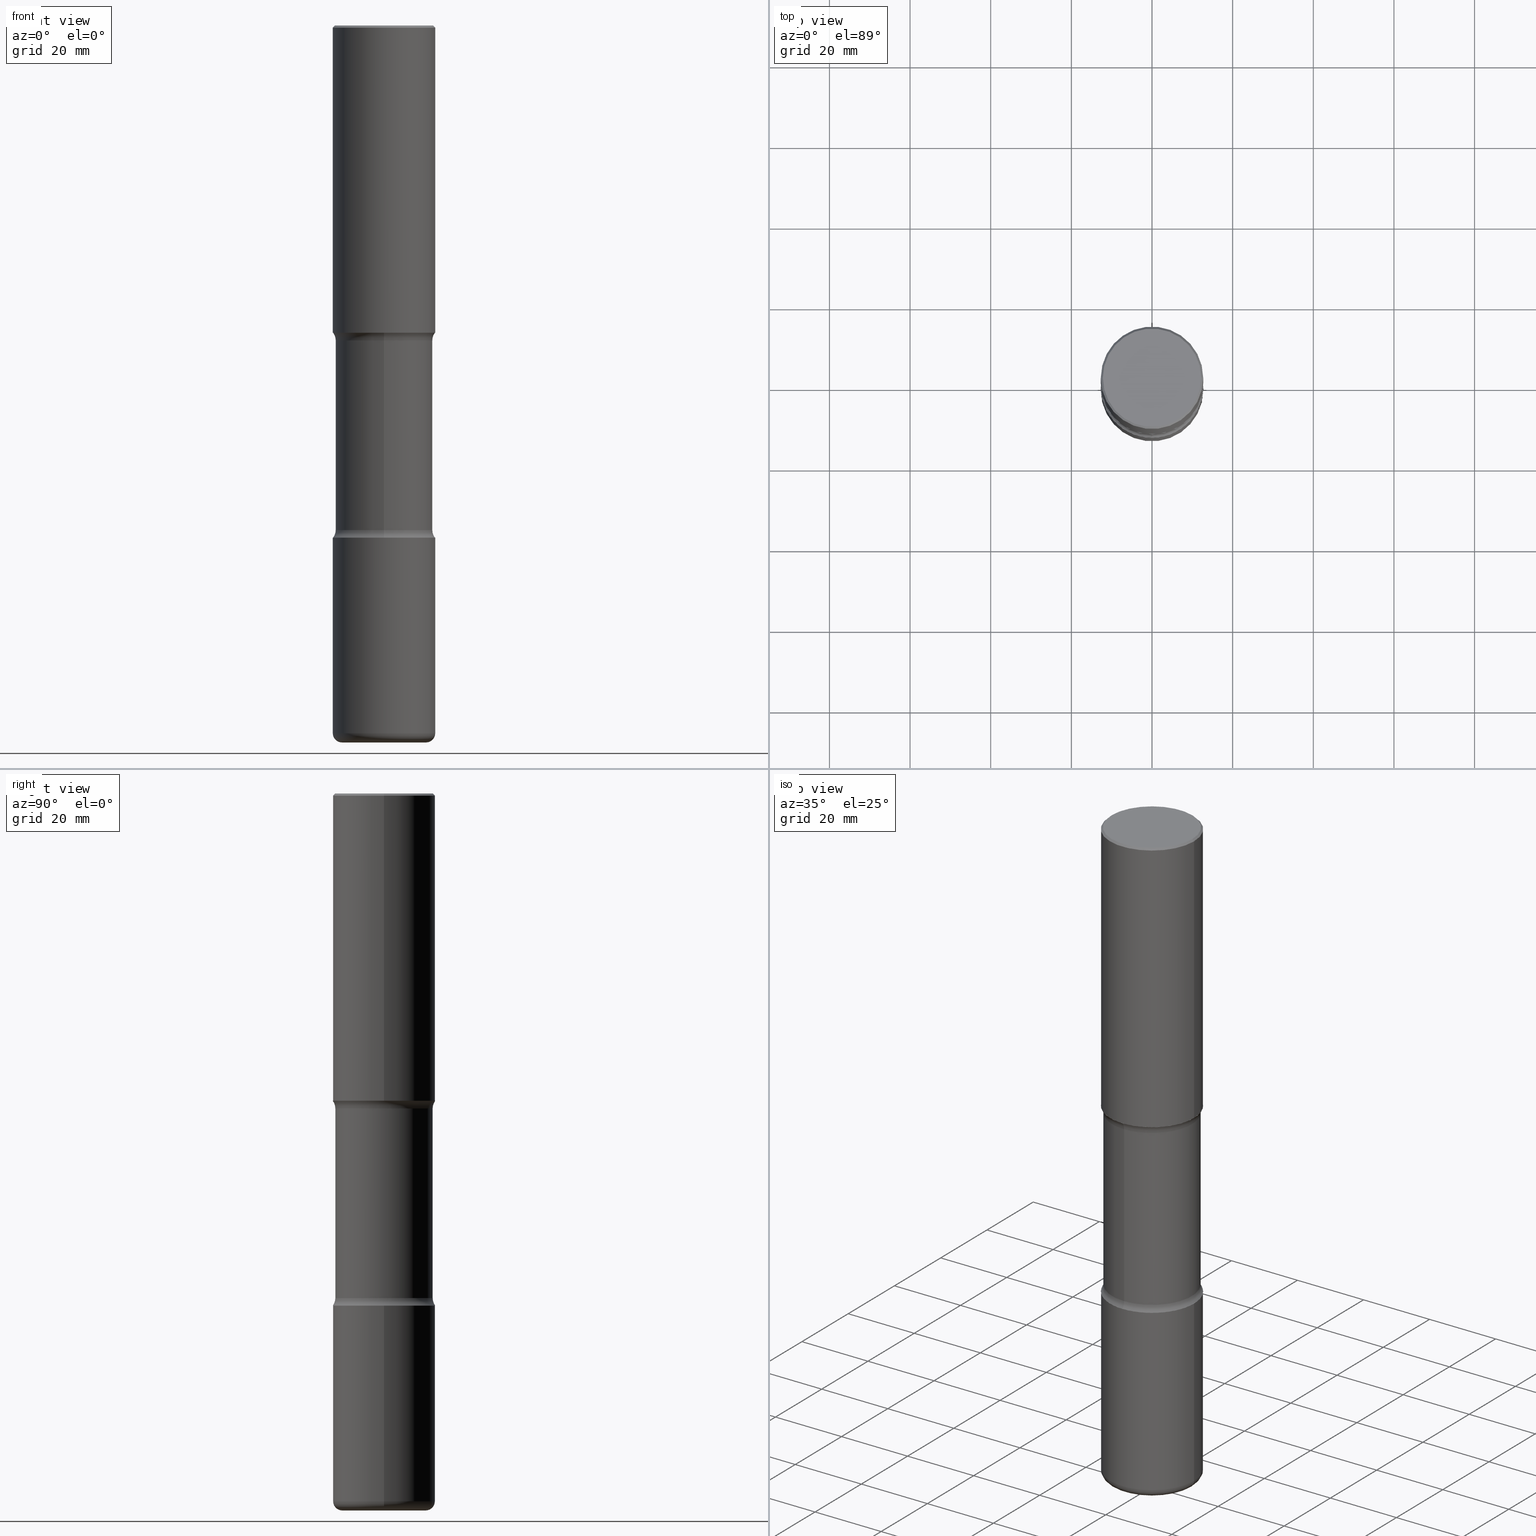
[diagram: canonical four-view strip — front | top / right | iso, engineering-drawing reading convention]
A machine part, canonical four-view strip (front | top / right | iso — engineering-drawing reading convention). The complete STEP part file that produces these views, byte-faithful:
ISO-10303-21;
HEADER;
FILE_DESCRIPTION (( 'STEP AP203' ),
    '1' );
FILE_NAME ('37970.STEP',
    '2024-03-02T01:56:38',
    ( '' ),
    ( '' ),
    'SwSTEP 2.0',
    'SolidWorks 2023',
    '' );
FILE_SCHEMA (( 'CONFIG_CONTROL_DESIGN' ));
ENDSEC;

DATA;
#1 = COORDINATED_UNIVERSAL_TIME_OFFSET ( 5, 0, .BEHIND. ) ;
#2 = FACE_OUTER_BOUND ( 'NONE', #448, .T. ) ;
#3 = CONICAL_SURFACE ( 'NONE', #101, 0.4999999999999999445, 0.7853981633974477239 ) ;
#4 = EDGE_CURVE ( 'NONE', #35, #541, #553, .T. ) ;
#5 = CARTESIAN_POINT ( 'NONE',  ( 1.689818945073929451E-28, -2.412613605140613858E-14, -6.910000000000000142 ) ) ;
#6 = CARTESIAN_POINT ( 'NONE',  ( -0.5000000000000001110, 3.552713678800501718E-15, -2.459467545127453732E-29 ) ) ;
#7 = EDGE_LOOP ( 'NONE', ( #529, #162, #547, #364 ) ) ;
#8 = VERTEX_POINT ( 'NONE', #280 ) ;
#9 = DIRECTION ( 'NONE',  ( -2.445468806185136597E-29, 3.491481338843145583E-15, 1.000000000000000000 ) ) ;
#10 = ORIENTED_EDGE ( 'NONE', *, *, #126, .T. ) ;
#11 = CIRCLE ( 'NONE', #255, 0.4999999999999999445 ) ;
#12 = TOROIDAL_SURFACE ( 'NONE', #461, 0.5999999999999999778, 0.1250000000000001110 ) ;
#13 = DIRECTION ( 'NONE',  ( 1.000000000000000000, -6.982962677686269077E-15, 4.883557194083113462E-29 ) ) ;
#14 = VERTEX_POINT ( 'NONE', #486 ) ;
#15 = APPROVAL ( #120, 'UNSPECIFIED' ) ;
#16 = CARTESIAN_POINT ( 'NONE',  ( 1.204017111178237438E-28, -1.720093407839433761E-14, -4.924999999999998046 ) ) ;
#17 = ORIENTED_EDGE ( 'NONE', *, *, #346, .T. ) ;
#18 = UNCERTAINTY_MEASURE_WITH_UNIT (LENGTH_MEASURE( 1.000000000000000082E-05 ), #279, 'distance_accuracy_value', 'NONE');
#19 = DIRECTION ( 'NONE',  ( 6.982962677686265133E-15, 1.000000000000000000, -3.278217592397113101E-15 ) ) ;
#20 = EDGE_CURVE ( 'NONE', #73, #52, #392, .T. ) ;
#21 = ORIENTED_EDGE ( 'NONE', *, *, #179, .F. ) ;
#22 = DATE_TIME_ROLE ( 'creation_date' ) ;
#23 = TOROIDAL_SURFACE ( 'NONE', #89, 0.6000000000000001998, 0.1250000000000002498 ) ;
#24 = AXIS2_PLACEMENT_3D ( 'NONE', #172, #253, #434 ) ;
#25 = CARTESIAN_POINT ( 'NONE',  ( 1.222734403092568074E-28, -1.745740669421572673E-14, -4.999999999999999112 ) ) ;
#26 = CC_DESIGN_PERSON_AND_ORGANIZATION_ASSIGNMENT ( #342, #351, ( #525 ) ) ;
#27 = VERTEX_POINT ( 'NONE', #263 ) ;
#28 = PERSON_AND_ORGANIZATION_ROLE ( 'creator' ) ;
#29 = APPROVAL_ROLE ( '' ) ;
#30 = VERTEX_POINT ( 'NONE', #95 ) ;
#31 = AXIS2_PLACEMENT_3D ( 'NONE', #43, #213, #478 ) ;
#32 = DIRECTION ( 'NONE',  ( -2.495638921910707734E-29, 3.419634877618474112E-15, 1.000000000000000000 ) ) ;
#33 = FACE_OUTER_BOUND ( 'NONE', #55, .T. ) ;
#34 = APPROVAL_PERSON_ORGANIZATION ( #156, #337, #29 ) ;
#35 = VERTEX_POINT ( 'NONE', #270 ) ;
#36 = PERSON_AND_ORGANIZATION_ROLE ( 'design_owner' ) ;
#37 = ADVANCED_FACE ( 'NONE', ( #444 ), #54, .T. ) ;
#38 = FACE_OUTER_BOUND ( 'NONE', #531, .T. ) ;
#39 = VECTOR ( 'NONE', #510, 39.37007874015748143 ) ;
#40 = AXIS2_PLACEMENT_3D ( 'NONE', #288, #534, #319 ) ;
#41 = DATE_AND_TIME ( #176, #407 ) ;
#42 = FACE_OUTER_BOUND ( 'NONE', #287, .T. ) ;
#43 = CARTESIAN_POINT ( 'NONE',  ( 7.236066187104263592E-29, -1.061813693897877772E-14, -2.999999999999999112 ) ) ;
#44 = EDGE_CURVE ( 'NONE', #530, #299, #182, .T. ) ;
#45 = DIRECTION ( 'NONE',  ( -1.000000000000000000, 6.982962677686265922E-15, -4.876176775795935793E-29 ) ) ;
#46 = DIRECTION ( 'NONE',  ( -2.445468806185136597E-29, 3.491481338843145583E-15, 1.000000000000000000 ) ) ;
#47 = CIRCLE ( 'NONE', #60, 0.4799999999999998157 ) ;
#48 = DIRECTION ( 'NONE',  ( 1.000000000000000000, -6.982962677686270655E-15, 0.000000000000000000 ) ) ;
#49 = CARTESIAN_POINT ( 'NONE',  ( 7.424434616114947917E-29, -1.087289751662588659E-14, -3.075000000000000178 ) ) ;
#50 = ORIENTED_EDGE ( 'NONE', *, *, #20, .T. ) ;
#51 = DIRECTION ( 'NONE',  ( 2.438088387897960049E-29, -3.491481338843145188E-15, -1.000000000000000000 ) ) ;
#52 = VERTEX_POINT ( 'NONE', #513 ) ;
#53 = CARTESIAN_POINT ( 'NONE',  ( 0.000000000000000000, 0.000000000000000000, 0.000000000000000000 ) ) ;
#54 = CYLINDRICAL_SURFACE ( 'NONE', #484, 0.5000000000000001110 ) ;
#55 = EDGE_LOOP ( 'NONE', ( #368, #294, #148, #502 ) ) ;
#56 = ORIENTED_EDGE ( 'NONE', *, *, #411, .T. ) ;
#57 = CARTESIAN_POINT ( 'NONE',  ( 1.689818945073929451E-28, -2.412613605140613858E-14, -6.910000000000000142 ) ) ;
#58 = EDGE_LOOP ( 'NONE', ( #56, #316, #537, #443 ) ) ;
#59 = AXIS2_PLACEMENT_3D ( 'NONE', #535, #146, #313 ) ;
#60 = AXIS2_PLACEMENT_3D ( 'NONE', #388, #118, #520 ) ;
#61 = CC_DESIGN_SECURITY_CLASSIFICATION ( #525, ( #201 ) ) ;
#62 = DIRECTION ( 'NONE',  ( 2.445468806185136597E-29, -3.491481338843145583E-15, -1.000000000000000000 ) ) ;
#63 = ORIENTED_EDGE ( 'NONE', *, *, #44, .T. ) ;
#64 = EDGE_CURVE ( 'NONE', #160, #8, #439, .T. ) ;
#65 = ORIENTED_EDGE ( 'NONE', *, *, #4, .F. ) ;
#66 = EDGE_CURVE ( 'NONE', #141, #314, #323, .T. ) ;
#67 = DIRECTION ( 'NONE',  ( 2.495638921910708014E-29, -3.419634877618474112E-15, -1.000000000000000000 ) ) ;
#68 = AXIS2_PLACEMENT_3D ( 'NONE', #284, #332, #80 ) ;
#69 = DIRECTION ( 'NONE',  ( -2.445468806185136597E-29, 3.491481338843145583E-15, 1.000000000000000000 ) ) ;
#70 = DIRECTION ( 'NONE',  ( -1.000000000000000000, 6.982962677686265922E-15, -4.876176775795935793E-29 ) ) ;
#71 = CYLINDRICAL_SURFACE ( 'NONE', #82, 0.4750000000000000333 ) ;
#72 = EDGE_CURVE ( 'NONE', #52, #73, #266, .T. ) ;
#73 = VERTEX_POINT ( 'NONE', #494 ) ;
#74 = ADVANCED_FACE ( 'NONE', ( #489 ), #23, .F. ) ;
#75 = CARTESIAN_POINT ( 'NONE',  ( 4.189777606611833390E-15, 0.5999999999999890976, -3.075000000000002398 ) ) ;
#76 = DIRECTION ( 'NONE',  ( 6.982962677686265133E-15, 1.000000000000000000, -3.419634877618474112E-15 ) ) ;
#77 = AXIS2_PLACEMENT_3D ( 'NONE', #378, #425, #19 ) ;
#78 = AXIS2_PLACEMENT_3D ( 'NONE', #142, #69, #296 ) ;
#79 = ADVANCED_FACE ( 'NONE', ( #324 ), #460, .T. ) ;
#80 = DIRECTION ( 'NONE',  ( 6.982962677686265133E-15, 1.000000000000000000, -3.450755360418015555E-15 ) ) ;
#81 = DATE_AND_TIME ( #476, #282 ) ;
#82 = AXIS2_PLACEMENT_3D ( 'NONE', #345, #423, #205 ) ;
#83 = APPROVAL_PERSON_ORGANIZATION ( #353, #15, #356 ) ;
#84 = CARTESIAN_POINT ( 'NONE',  ( 4.189777606611881511E-15, 0.5999999999999829914, -4.925000000000000711 ) ) ;
#85 = DIRECTION ( 'NONE',  ( -2.445468806185136597E-29, 3.491481338843145583E-15, 1.000000000000000000 ) ) ;
#86 = ADVANCED_FACE ( 'NONE', ( #549 ), #542, .T. ) ;
#87 = LINE ( 'NONE', #437, #417 ) ;
#88 = DIRECTION ( 'NONE',  ( 6.982962677686265133E-15, 1.000000000000000000, -3.419634877618474112E-15 ) ) ;
#89 = AXIS2_PLACEMENT_3D ( 'NONE', #380, #544, #76 ) ;
#90 = ORIENTED_EDGE ( 'NONE', *, *, #432, .T. ) ;
#91 = CIRCLE ( 'NONE', #215, 0.09000000000000020484 ) ;
#92 = MANIFOLD_SOLID_BREP ( 'Body-Move/Copy2[1]', #224 ) ;
#93 = CARTESIAN_POINT ( 'NONE',  ( -4.116298798662844153E-15, -0.6000000000000108580, -3.074999999999998401 ) ) ;
#94 = APPLICATION_CONTEXT ( 'configuration controlled 3d designs of mechanical parts and assemblies' ) ;
#95 = CARTESIAN_POINT ( 'NONE',  ( -3.344492773913550718E-15, -0.4750000000000109690, -3.074999999999998401 ) ) ;
#96 = PLANE ( 'NONE',  #168 ) ;
#97 = ORIENTED_EDGE ( 'NONE', *, *, #555, .F. ) ;
#98 = CARTESIAN_POINT ( 'NONE',  ( 7.336406418555407548E-29, -1.047444401652943320E-14, -2.999999999999999112 ) ) ;
#99 = AXIS2_PLACEMENT_3D ( 'NONE', #84, #259, #481 ) ;
#100 = EDGE_CURVE ( 'NONE', #499, #14, #11, .T. ) ;
#101 = AXIS2_PLACEMENT_3D ( 'NONE', #229, #62, #412 ) ;
#102 = DIRECTION ( 'NONE',  ( 6.982962677686265133E-15, 1.000000000000000000, -3.450755360418015555E-15 ) ) ;
#103 = ORIENTED_EDGE ( 'NONE', *, *, #383, .T. ) ;
#104 = EDGE_CURVE ( 'NONE', #8, #160, #416, .T. ) ;
#105 = DIRECTION ( 'NONE',  ( -2.445468806185136877E-29, 3.491481338843145188E-15, 1.000000000000000000 ) ) ;
#106 = CARTESIAN_POINT ( 'NONE',  ( 0.5000000000000002220, -1.396592535537256813E-14, -2.999999999999999112 ) ) ;
#107 = EDGE_LOOP ( 'NONE', ( #424, #419 ) ) ;
#108 = CARTESIAN_POINT ( 'NONE',  ( 4.890937612370306439E-31, -6.982962677686338448E-17, -0.02000000000000013572 ) ) ;
#109 = DIRECTION ( 'NONE',  ( 6.982962677686265133E-15, 1.000000000000000000, -3.419634877618474112E-15 ) ) ;
#110 = DIRECTION ( 'NONE',  ( 1.000000000000000000, -6.982962677686266711E-15, 4.876431871984415397E-29 ) ) ;
#111 = LOCAL_TIME ( 20, 56, 38.00000000000000000, #331 ) ;
#112 = ORIENTED_EDGE ( 'NONE', *, *, #555, .T. ) ;
#113 = CC_DESIGN_PERSON_AND_ORGANIZATION_ASSIGNMENT ( #206, #390, ( #201 ) ) ;
#114 = CYLINDRICAL_SURFACE ( 'NONE', #308, 0.5000000000000001110 ) ;
#115 = ADVANCED_FACE ( 'NONE', ( #438 ), #350, .T. ) ;
#116 = AXIS2_PLACEMENT_3D ( 'NONE', #57, #151, #395 ) ;
#117 = AXIS2_PLACEMENT_3D ( 'NONE', #108, #491, #538 ) ;
#118 = DIRECTION ( 'NONE',  ( -2.445468806185136597E-29, 3.491481338843145583E-15, 1.000000000000000000 ) ) ;
#119 = CC_DESIGN_PERSON_AND_ORGANIZATION_ASSIGNMENT ( #557, #28, ( #528 ) ) ;
#120 = APPROVAL_STATUS ( 'not_yet_approved' ) ;
#121 = CC_DESIGN_PERSON_AND_ORGANIZATION_ASSIGNMENT ( #252, #526, ( #201 ) ) ;
#122 = CARTESIAN_POINT ( 'NONE',  ( 7.423239106247569958E-29, -1.087460955480016368E-14, -3.074999999999999734 ) ) ;
#123 = EDGE_CURVE ( 'NONE', #533, #8, #352, .T. ) ;
#124 = AXIS2_PLACEMENT_3D ( 'NONE', #498, #359, #134 ) ;
#125 = MECHANICAL_CONTEXT ( 'NONE', #145, 'mechanical' ) ;
#126 = EDGE_CURVE ( 'NONE', #357, #160, #295, .T. ) ;
#127 = CARTESIAN_POINT ( 'NONE',  ( 0.4100000000000004752, -2.698915074925750856E-14, -6.910000000000000142 ) ) ;
#128 = ADVANCED_BREP_SHAPE_REPRESENTATION ( '37970', ( #92, #289, #470, #452 ), #363 ) ;
#129 = DIRECTION ( 'NONE',  ( 1.000000000000000000, -6.982962677686269077E-15, 4.883557194083113462E-29 ) ) ;
#130 = FACE_OUTER_BOUND ( 'NONE', #225, .T. ) ;
#131 = ORIENTED_EDGE ( 'NONE', *, *, #469, .T. ) ;
#132 = ORIENTED_EDGE ( 'NONE', *, *, #455, .F. ) ;
#133 = ADVANCED_FACE ( 'NONE', ( #33 ), #71, .T. ) ;
#134 = DIRECTION ( 'NONE',  ( 6.982962677686266711E-15, 1.000000000000000000, -4.370956789862819572E-15 ) ) ;
#135 = AXIS2_PLACEMENT_3D ( 'NONE', #554, #501, #422 ) ;
#136 = PRODUCT ( '37970', '37970', '', ( #125 ) ) ;
#137 = EDGE_LOOP ( 'NONE', ( #97, #65 ) ) ;
#138 = CIRCLE ( 'NONE', #184, 0.1250000000000001110 ) ;
#139 = CC_DESIGN_DATE_AND_TIME_ASSIGNMENT ( #167, #22, ( #528 ) ) ;
#140 = DIRECTION ( 'NONE',  ( 6.860497997771531562E-15, 1.000000000000000000, 0.000000000000000000 ) ) ;
#141 = VERTEX_POINT ( 'NONE', #387 ) ;
#142 = CARTESIAN_POINT ( 'NONE',  ( 1.711828164329595618E-28, -2.444036937190202184E-14, -7.000000000000000888 ) ) ;
#143 = ORIENTED_EDGE ( 'NONE', *, *, #64, .F. ) ;
#144 = CARTESIAN_POINT ( 'NONE',  ( 0.5000000000000002220, -2.094888803305886009E-14, -4.999999999999999112 ) ) ;
#145 = APPLICATION_CONTEXT ( 'configuration controlled 3d designs of mechanical parts and assemblies' ) ;
#146 = DIRECTION ( 'NONE',  ( -2.445468806185136597E-29, 3.491481338843145583E-15, 1.000000000000000000 ) ) ;
#147 = DIRECTION ( 'NONE',  ( 0.7071067811865471286, -7.319954787623254468E-15, -0.7071067811865479058 ) ) ;
#148 = ORIENTED_EDGE ( 'NONE', *, *, #335, .T. ) ;
#149 = FACE_OUTER_BOUND ( 'NONE', #230, .T. ) ;
#150 = ORIENTED_EDGE ( 'NONE', *, *, #66, .F. ) ;
#151 = DIRECTION ( 'NONE',  ( -2.445468806185136597E-29, 3.491481338843145583E-15, 1.000000000000000000 ) ) ;
#152 = CARTESIAN_POINT ( 'NONE',  ( -3.258736548941304889E-15, -0.4750000000000243472, -6.999999999999997335 ) ) ;
#153 = VERTEX_POINT ( 'NONE', #558 ) ;
#154 = AXIS2_PLACEMENT_3D ( 'NONE', #517, #391, #426 ) ;
#155 = VECTOR ( 'NONE', #301, 39.37007874015748143 ) ;
#156 = PERSON_AND_ORGANIZATION ( #297, #429 ) ;
#157 = ORIENTED_EDGE ( 'NONE', *, *, #179, .T. ) ;
#158 = DIRECTION ( 'NONE',  ( 6.982962677686265922E-15, 1.000000000000000000, -3.419634877618474112E-15 ) ) ;
#159 = CARTESIAN_POINT ( 'NONE',  ( -4.175405657340879278E-46, 5.961372681521788801E-32, 1.707404996040164512E-17 ) ) ;
#160 = VERTEX_POINT ( 'NONE', #144 ) ;
#161 = APPROVAL_ROLE ( '' ) ;
#162 = ORIENTED_EDGE ( 'NONE', *, *, #4, .T. ) ;
#163 = FACE_OUTER_BOUND ( 'NONE', #183, .T. ) ;
#164 = AXIS2_PLACEMENT_3D ( 'NONE', #122, #540, #102 ) ;
#165 = ORIENTED_EDGE ( 'NONE', *, *, #262, .T. ) ;
#166 = PERSON_AND_ORGANIZATION ( #297, #429 ) ;
#167 = DATE_AND_TIME ( #551, #511 ) ;
#168 = AXIS2_PLACEMENT_3D ( 'NONE', #410, #521, #475 ) ;
#169 = CIRCLE ( 'NONE', #485, 0.4799999999999998157 ) ;
#170 = DIRECTION ( 'NONE',  ( 1.000000000000000000, -6.860497997771530774E-15, 4.841678745011831520E-29 ) ) ;
#171 = CARTESIAN_POINT ( 'NONE',  ( 1.689818945073929451E-28, -2.412613605140613858E-14, -6.910000000000000142 ) ) ;
#172 = CARTESIAN_POINT ( 'NONE',  ( 1.204017111178237438E-28, -1.720093407839433761E-14, -4.924999999999998046 ) ) ;
#173 = DIRECTION ( 'NONE',  ( 6.982962677686265133E-15, 1.000000000000000000, -2.300503573612011422E-15 ) ) ;
#174 = AXIS2_PLACEMENT_3D ( 'NONE', #98, #453, #396 ) ;
#175 = AXIS2_PLACEMENT_3D ( 'NONE', #53, #218, #221 ) ;
#176 = CALENDAR_DATE ( 2024, 1, 3 ) ;
#177 = ORIENTED_EDGE ( 'NONE', *, *, #104, .F. ) ;
#178 = CARTESIAN_POINT ( 'NONE',  ( 1.721862187474709565E-28, -2.429667644945267101E-14, -6.999999999999998224 ) ) ;
#179 = EDGE_CURVE ( 'NONE', #30, #314, #523, .T. ) ;
#180 = ORIENTED_EDGE ( 'NONE', *, *, #545, .F. ) ;
#181 = ORIENTED_EDGE ( 'NONE', *, *, #100, .T. ) ;
#182 = CIRCLE ( 'NONE', #135, 0.4100000000000004752 ) ;
#183 = EDGE_LOOP ( 'NONE', ( #336, #405, #10, #177 ) ) ;
#184 = AXIS2_PLACEMENT_3D ( 'NONE', #75, #379, #238 ) ;
#185 = EDGE_LOOP ( 'NONE', ( #326, #50 ) ) ;
#186 = ORIENTED_EDGE ( 'NONE', *, *, #545, .T. ) ;
#187 = ORIENTED_EDGE ( 'NONE', *, *, #492, .F. ) ;
#188 =( NAMED_UNIT ( * ) PLANE_ANGLE_UNIT ( ) SI_UNIT ( $, .RADIAN. ) );
#189 = EDGE_LOOP ( 'NONE', ( #150, #269 ) ) ;
#190 = CLOSED_SHELL ( 'NONE', ( #37, #79, #304, #516, #285, #462 ) ) ;
#191 = CARTESIAN_POINT ( 'NONE',  ( 1.222734403092568074E-28, -1.745740669421572673E-14, -4.999999999999999112 ) ) ;
#192 = FACE_OUTER_BOUND ( 'NONE', #330, .T. ) ;
#193 = ORIENTED_EDGE ( 'NONE', *, *, #346, .F. ) ;
#194 = ADVANCED_FACE ( 'NONE', ( #278 ), #96, .T. ) ;
#195 = EDGE_LOOP ( 'NONE', ( #240, #318, #186, #271 ) ) ;
#196 = COORDINATED_UNIVERSAL_TIME_OFFSET ( 5, 0, .BEHIND. ) ;
#197 = SHAPE_DEFINITION_REPRESENTATION ( #237, #128 ) ;
#198 = DIRECTION ( 'NONE',  ( 2.495638921910708014E-29, -3.419634877618474112E-15, -1.000000000000000000 ) ) ;
#199 = VERTEX_POINT ( 'NONE', #257 ) ;
#200 = VECTOR ( 'NONE', #433, 39.37007874015748143 ) ;
#201 = PRODUCT_DEFINITION_FORMATION_WITH_SPECIFIED_SOURCE ( 'ANY', '', #136, .NOT_KNOWN. ) ;
#202 = DATE_AND_TIME ( #508, #111 ) ;
#203 = PLANE ( 'NONE',  #256 ) ;
#204 = ORIENTED_EDGE ( 'NONE', *, *, #233, .F. ) ;
#205 = DIRECTION ( 'NONE',  ( 6.982962677686265922E-15, 1.000000000000000000, -2.300503573612011028E-15 ) ) ;
#206 = PERSON_AND_ORGANIZATION ( #297, #429 ) ;
#207 = DIRECTION ( 'NONE',  ( -2.445468806185136597E-29, 3.491481338843145583E-15, 1.000000000000000000 ) ) ;
#208 = AXIS2_PLACEMENT_3D ( 'NONE', #311, #402, #222 ) ;
#209 = VECTOR ( 'NONE', #67, 39.37007874015748143 ) ;
#210 = PLANE ( 'NONE',  #174 ) ;
#211 = DIRECTION ( 'NONE',  ( -2.445468806185136597E-29, 3.491481338843145583E-15, 1.000000000000000000 ) ) ;
#212 = PLANE ( 'NONE',  #399 ) ;
#213 = DIRECTION ( 'NONE',  ( 2.495638921910708014E-29, -3.419634877618474112E-15, -1.000000000000000000 ) ) ;
#214 = AXIS2_PLACEMENT_3D ( 'NONE', #442, #51, #45 ) ;
#215 = AXIS2_PLACEMENT_3D ( 'NONE', #127, #309, #447 ) ;
#216 = ORIENTED_EDGE ( 'NONE', *, *, #264, .F. ) ;
#217 = ADVANCED_FACE ( 'NONE', ( #273 ), #471, .F. ) ;
#218 = DIRECTION ( 'NONE',  ( -2.445468806185136597E-29, 3.491481338843145583E-15, 1.000000000000000000 ) ) ;
#219 = APPROVAL ( #381, 'UNSPECIFIED' ) ;
#220 = ORIENTED_EDGE ( 'NONE', *, *, #254, .T. ) ;
#221 = DIRECTION ( 'NONE',  ( 1.000000000000000000, -6.982962677686266711E-15, 4.876176775795935232E-29 ) ) ;
#222 = DIRECTION ( 'NONE',  ( 1.000000000000000000, -6.982962677686263555E-15, 0.000000000000000000 ) ) ;
#223 = CARTESIAN_POINT ( 'NONE',  ( -0.4999999999999999445, 3.421651712066269663E-15, -0.02000000000000013572 ) ) ;
#224 = CLOSED_SHELL ( 'NONE', ( #436, #86, #194, #527, #450, #228 ) ) ;
#225 = EDGE_LOOP ( 'NONE', ( #21, #245, #17, #382 ) ) ;
#226 = CC_DESIGN_APPROVAL ( #15, ( #201 ) ) ;
#227 = LINE ( 'NONE', #322, #559 ) ;
#228 = ADVANCED_FACE ( 'NONE', ( #149 ), #268, .F. ) ;
#229 = CARTESIAN_POINT ( 'NONE',  ( 4.890937612370306439E-31, -6.982962677686338448E-17, -0.02000000000000013572 ) ) ;
#230 = EDGE_LOOP ( 'NONE', ( #409, #445 ) ) ;
#231 = DIRECTION ( 'NONE',  ( 1.000000000000000000, -6.982962677686267499E-15, 4.876176775795935793E-29 ) ) ;
#232 = ORIENTED_EDGE ( 'NONE', *, *, #242, .T. ) ;
#233 = EDGE_CURVE ( 'NONE', #27, #14, #275, .T. ) ;
#234 = CLOSED_SHELL ( 'NONE', ( #115, #217, #344, #536, #473, #355, #74, #133 ) ) ;
#235 = CIRCLE ( 'NONE', #543, 0.09000000000000020484 ) ;
#236 = APPLICATION_PROTOCOL_DEFINITION ( 'international standard', 'config_control_design', 1994, #94 ) ;
#237 = PRODUCT_DEFINITION_SHAPE ( 'NONE', 'NONE',  #528 ) ;
#238 = DIRECTION ( 'NONE',  ( -6.982962677686264344E-15, -1.000000000000000000, 0.000000000000000000 ) ) ;
#239 = ORIENTED_EDGE ( 'NONE', *, *, #328, .T. ) ;
#240 = ORIENTED_EDGE ( 'NONE', *, *, #383, .F. ) ;
#241 = CARTESIAN_POINT ( 'NONE',  ( 0.000000000000000000, 0.000000000000000000, 0.000000000000000000 ) ) ;
#242 = EDGE_CURVE ( 'NONE', #199, #499, #372, .T. ) ;
#243 = DIRECTION ( 'NONE',  ( 1.000000000000000000, -6.982962677686263555E-15, 0.000000000000000000 ) ) ;
#244 = FACE_OUTER_BOUND ( 'NONE', #185, .T. ) ;
#245 = ORIENTED_EDGE ( 'NONE', *, *, #246, .F. ) ;
#246 = EDGE_CURVE ( 'NONE', #360, #30, #375, .T. ) ;
#247 = DIRECTION ( 'NONE',  ( 7.105427357601001859E-15, 1.000000000000000000, -3.491481338843145583E-15 ) ) ;
#248 = CIRCLE ( 'NONE', #267, 0.4749999999999999778 ) ;
#249 = DIRECTION ( 'NONE',  ( 0.000000000000000000, 0.000000000000000000, 1.000000000000000000 ) ) ;
#250 = AXIS2_PLACEMENT_3D ( 'NONE', #49, #198, #503 ) ;
#251 = DIRECTION ( 'NONE',  ( 2.495638921910708014E-29, -3.419634877618474112E-15, -1.000000000000000000 ) ) ;
#252 = PERSON_AND_ORGANIZATION ( #297, #429 ) ;
#253 = DIRECTION ( 'NONE',  ( 2.495638921910708014E-29, -3.419634877618474112E-15, -1.000000000000000000 ) ) ;
#254 = EDGE_CURVE ( 'NONE', #314, #141, #477, .T. ) ;
#255 = AXIS2_PLACEMENT_3D ( 'NONE', #338, #85, #272 ) ;
#256 = AXIS2_PLACEMENT_3D ( 'NONE', #25, #32, #386 ) ;
#257 = CARTESIAN_POINT ( 'NONE',  ( -0.4799999999999998157, 3.386736898677838408E-15, 1.707404996037808406E-17 ) ) ;
#258 = CC_DESIGN_APPROVAL ( #337, ( #525 ) ) ;
#259 = DIRECTION ( 'NONE',  ( -1.000000000000000000, 6.982962677686265922E-15, -4.883557194083112340E-29 ) ) ;
#260 = CARTESIAN_POINT ( 'NONE',  ( 1.689818945073929451E-28, -2.412613605140613858E-14, -6.910000000000000142 ) ) ;
#261 = CARTESIAN_POINT ( 'NONE',  ( -0.4999999999999999445, 3.421651712066269663E-15, -0.02000000000000013572 ) ) ;
#262 = EDGE_CURVE ( 'NONE', #52, #401, #307, .T. ) ;
#263 = CARTESIAN_POINT ( 'NONE',  ( 0.4799999999999998157, -3.396558832296481310E-15, 1.707404996042524007E-17 ) ) ;
#264 = EDGE_CURVE ( 'NONE', #533, #357, #428, .T. ) ;
#265 = CYLINDRICAL_SURFACE ( 'NONE', #175, 0.5000000000000004441 ) ;
#266 = CIRCLE ( 'NONE', #509, 0.5000000000000002220 ) ;
#267 = AXIS2_PLACEMENT_3D ( 'NONE', #16, #532, #173 ) ;
#268 = PLANE ( 'NONE',  #214 ) ;
#269 = ORIENTED_EDGE ( 'NONE', *, *, #254, .F. ) ;
#270 = CARTESIAN_POINT ( 'NONE',  ( -0.5000000000000002220, -1.719423142852643572E-15, -2.999999999999999112 ) ) ;
#271 = ORIENTED_EDGE ( 'NONE', *, *, #242, .F. ) ;
#272 = DIRECTION ( 'NONE',  ( 1.000000000000000000, -6.982962677686266711E-15, 0.000000000000000000 ) ) ;
#273 = FACE_OUTER_BOUND ( 'NONE', #454, .T. ) ;
#274 = ORIENTED_EDGE ( 'NONE', *, *, #123, .T. ) ;
#275 = LINE ( 'NONE', #493, #300 ) ;
#276 = ORIENTED_EDGE ( 'NONE', *, *, #432, .F. ) ;
#277 = PLANE ( 'NONE',  #325 ) ;
#278 = FACE_OUTER_BOUND ( 'NONE', #107, .T. ) ;
#279 =( CONVERSION_BASED_UNIT ( 'INCH', #451 ) LENGTH_UNIT ( ) NAMED_UNIT ( #327 ) );
#280 = CARTESIAN_POINT ( 'NONE',  ( -0.5000000000000002220, -1.723905769401042541E-14, -4.999999999999999112 ) ) ;
#281 = AXIS2_PLACEMENT_3D ( 'NONE', #93, #170, #140 ) ;
#282 = LOCAL_TIME ( 20, 56, 38.00000000000000000, #306 ) ;
#283 = EDGE_LOOP ( 'NONE', ( #90, #103 ) ) ;
#284 = CARTESIAN_POINT ( 'NONE',  ( 7.423239106247569958E-29, -1.087460955480016368E-14, -3.074999999999999734 ) ) ;
#285 = ADVANCED_FACE ( 'NONE', ( #408 ), #210, .F. ) ;
#286 = CALENDAR_DATE ( 2024, 1, 3 ) ;
#287 = EDGE_LOOP ( 'NONE', ( #131, #274, #143, #333 ) ) ;
#288 = CARTESIAN_POINT ( 'NONE',  ( 7.336406418555407548E-29, -1.047444401652943320E-14, -2.999999999999999112 ) ) ;
#289 = MANIFOLD_SOLID_BREP ( 'Body-Move/Copy2[2]', #190 ) ;
#290 = CARTESIAN_POINT ( 'NONE',  ( 3.316907271901096594E-15, 0.4749999999999827693, -4.924999999999999822 ) ) ;
#291 = AXIS2_PLACEMENT_3D ( 'NONE', #178, #358, #522 ) ;
#292 = CIRCLE ( 'NONE', #24, 0.4749999999999999778 ) ;
#293 = LOCAL_TIME ( 20, 56, 38.00000000000000000, #370 ) ;
#294 = ORIENTED_EDGE ( 'NONE', *, *, #492, .T. ) ;
#295 = LINE ( 'NONE', #427, #39 ) ;
#296 = DIRECTION ( 'NONE',  ( 1.000000000000000000, -6.982962677686262766E-15, 0.000000000000000000 ) ) ;
#297 = PERSON ( 'UNSPECIFIED', 'UNSPECIFIED', 'UNSPECIFIED', ('UNSPECIFIED'), ('UNSPECIFIED'), ('UNSPECIFIED') ) ;
#298 = CARTESIAN_POINT ( 'NONE',  ( 0.000000000000000000, 0.000000000000000000, 0.000000000000000000 ) ) ;
#299 = VERTEX_POINT ( 'NONE', #488 ) ;
#300 = VECTOR ( 'NONE', #147, 39.37007874015748143 ) ;
#301 = DIRECTION ( 'NONE',  ( -2.445468806185136877E-29, 3.491481338843145188E-15, 1.000000000000000000 ) ) ;
#302 = TOROIDAL_SURFACE ( 'NONE', #376, 0.4100000000000004752, 0.09000000000000023259 ) ;
#303 = CARTESIAN_POINT ( 'NONE',  ( -0.4100000000000004752, -2.121291083478972365E-14, -6.910000000000000142 ) ) ;
#304 = ADVANCED_FACE ( 'NONE', ( #2 ), #3, .T. ) ;
#305 = APPROVAL_DATE_TIME ( #41, #15 ) ;
#306 = COORDINATED_UNIVERSAL_TIME_OFFSET ( 5, 0, .BEHIND. ) ;
#307 = CIRCLE ( 'NONE', #99, 0.1250000000000002498 ) ;
#308 = AXIS2_PLACEMENT_3D ( 'NONE', #312, #479, #482 ) ;
#309 = DIRECTION ( 'NONE',  ( -6.982962677686266711E-15, -1.000000000000000000, 3.491481338843145583E-15 ) ) ;
#310 = EDGE_CURVE ( 'NONE', #153, #401, #248, .T. ) ;
#311 = CARTESIAN_POINT ( 'NONE',  ( 1.222734403092568074E-28, -1.745740669421572673E-14, -4.999999999999999112 ) ) ;
#312 = CARTESIAN_POINT ( 'NONE',  ( 0.000000000000000000, 0.000000000000000000, 0.000000000000000000 ) ) ;
#313 = DIRECTION ( 'NONE',  ( 1.000000000000000000, -6.982962677686267499E-15, 0.000000000000000000 ) ) ;
#314 = VERTEX_POINT ( 'NONE', #524 ) ;
#315 = CIRCLE ( 'NONE', #117, 0.4999999999999999445 ) ;
#316 = ORIENTED_EDGE ( 'NONE', *, *, #455, .T. ) ;
#317 =( NAMED_UNIT ( * ) SI_UNIT ( $, .STERADIAN. ) SOLID_ANGLE_UNIT ( ) );
#318 = ORIENTED_EDGE ( 'NONE', *, *, #233, .T. ) ;
#319 = DIRECTION ( 'NONE',  ( 1.000000000000000000, -6.982962677686267499E-15, 0.000000000000000000 ) ) ;
#320 = DIRECTION ( 'NONE',  ( 2.495638921910708014E-29, -3.419634877618474112E-15, -1.000000000000000000 ) ) ;
#321 = ORIENTED_EDGE ( 'NONE', *, *, #262, .F. ) ;
#322 = CARTESIAN_POINT ( 'NONE',  ( 0.5000000000000001110, -3.491481338843134539E-15, 2.438088387897968457E-29 ) ) ;
#323 = CIRCLE ( 'NONE', #77, 0.5000000000000004441 ) ;
#324 = FACE_OUTER_BOUND ( 'NONE', #195, .T. ) ;
#325 = AXIS2_PLACEMENT_3D ( 'NONE', #449, #496, #158 ) ;
#326 = ORIENTED_EDGE ( 'NONE', *, *, #72, .T. ) ;
#327 = DIMENSIONAL_EXPONENTS ( 1.000000000000000000, 0.000000000000000000, 0.000000000000000000, 0.000000000000000000, 0.000000000000000000, 0.000000000000000000, 0.000000000000000000 ) ;
#328 = EDGE_CURVE ( 'NONE', #299, #357, #91, .T. ) ;
#329 = LINE ( 'NONE', #152, #209 ) ;
#330 = EDGE_LOOP ( 'NONE', ( #187, #157, #220, #193 ) ) ;
#331 = COORDINATED_UNIVERSAL_TIME_OFFSET ( 5, 0, .BEHIND. ) ;
#332 = DIRECTION ( 'NONE',  ( 2.495638921910708014E-29, -3.419634877618474112E-15, -1.000000000000000000 ) ) ;
#333 = ORIENTED_EDGE ( 'NONE', *, *, #126, .F. ) ;
#334 = AXIS2_PLACEMENT_3D ( 'NONE', #430, #420, #552 ) ;
#335 = EDGE_CURVE ( 'NONE', #360, #401, #87, .T. ) ;
#336 = ORIENTED_EDGE ( 'NONE', *, *, #123, .F. ) ;
#337 = APPROVAL ( #500, 'UNSPECIFIED' ) ;
#338 = CARTESIAN_POINT ( 'NONE',  ( 4.890937612370306439E-31, -6.982962677686338448E-17, -0.02000000000000013572 ) ) ;
#339 = ORIENTED_EDGE ( 'NONE', *, *, #441, .T. ) ;
#340 = DIRECTION ( 'NONE',  ( -1.000000000000000000, 7.105427357601017636E-15, 0.000000000000000000 ) ) ;
#341 = AXIS2_PLACEMENT_3D ( 'NONE', #5, #46, #129 ) ;
#342 = PERSON_AND_ORGANIZATION ( #297, #429 ) ;
#343 = APPROVAL_PERSON_ORGANIZATION ( #418, #219, #161 ) ;
#344 = ADVANCED_FACE ( 'NONE', ( #192 ), #12, .F. ) ;
#345 = CARTESIAN_POINT ( 'NONE',  ( 1.721862187474709565E-28, -2.429667644945267101E-14, -6.999999999999998224 ) ) ;
#346 = EDGE_CURVE ( 'NONE', #360, #141, #138, .T. ) ;
#347 = CYLINDRICAL_SURFACE ( 'NONE', #472, 0.5000000000000004441 ) ;
#348 = DIRECTION ( 'NONE',  ( -2.445468806185136597E-29, 3.491481338843145583E-15, 1.000000000000000000 ) ) ;
#349 = DIRECTION ( 'NONE',  ( -0.7071067811865471286, 2.468850131082252722E-15, -0.7071067811865479058 ) ) ;
#350 = CYLINDRICAL_SURFACE ( 'NONE', #291, 0.4750000000000000333 ) ;
#351 = PERSON_AND_ORGANIZATION_ROLE ( 'classification_officer' ) ;
#352 = LINE ( 'NONE', #467, #200 ) ;
#353 = PERSON_AND_ORGANIZATION ( #297, #429 ) ;
#354 = CIRCLE ( 'NONE', #334, 0.1250000000000002498 ) ;
#355 = ADVANCED_FACE ( 'NONE', ( #244 ), #203, .F. ) ;
#356 = APPROVAL_ROLE ( '' ) ;
#357 = VERTEX_POINT ( 'NONE', #365 ) ;
#358 = DIRECTION ( 'NONE',  ( 2.495638921910708014E-29, -3.419634877618474112E-15, -1.000000000000000000 ) ) ;
#359 = DIRECTION ( 'NONE',  ( 2.495638921910708014E-29, -3.419634877618474112E-15, -1.000000000000000000 ) ) ;
#360 = VERTEX_POINT ( 'NONE', #457 ) ;
#361 = EDGE_CURVE ( 'NONE', #30, #153, #329, .T. ) ;
#362 = AXIS2_PLACEMENT_3D ( 'NONE', #377, #251, #88 ) ;
#363 =( GEOMETRIC_REPRESENTATION_CONTEXT ( 3 ) GLOBAL_UNCERTAINTY_ASSIGNED_CONTEXT ( ( #18 ) ) GLOBAL_UNIT_ASSIGNED_CONTEXT ( ( #279, #188, #317 ) ) REPRESENTATION_CONTEXT ( 'NONE', 'WORKASPACE' ) );
#364 = ORIENTED_EDGE ( 'NONE', *, *, #100, .F. ) ;
#365 = CARTESIAN_POINT ( 'NONE',  ( 0.5000000000000005551, -2.761761739024927509E-14, -6.910000000000000142 ) ) ;
#366 = ORIENTED_EDGE ( 'NONE', *, *, #361, .T. ) ;
#367 = CARTESIAN_POINT ( 'NONE',  ( 1.222734403092568074E-28, -1.745740669421572673E-14, -4.999999999999999112 ) ) ;
#368 = ORIENTED_EDGE ( 'NONE', *, *, #361, .F. ) ;
#369 = DATE_TIME_ROLE ( 'classification_date' ) ;
#370 = COORDINATED_UNIVERSAL_TIME_OFFSET ( 5, 0, .BEHIND. ) ;
#371 = EDGE_LOOP ( 'NONE', ( #415, #495, #165, #456 ) ) ;
#372 = LINE ( 'NONE', #223, #406 ) ;
#373 = DESIGN_CONTEXT ( 'detailed design', #94, 'design' ) ;
#374 = CC_DESIGN_PERSON_AND_ORGANIZATION_ASSIGNMENT ( #166, #36, ( #136 ) ) ;
#375 = CIRCLE ( 'NONE', #164, 0.4750000000000001443 ) ;
#376 = AXIS2_PLACEMENT_3D ( 'NONE', #171, #348, #13 ) ;
#377 = CARTESIAN_POINT ( 'NONE',  ( 1.204393387046179415E-28, -1.719554559380248700E-14, -4.924999999999998046 ) ) ;
#378 = CARTESIAN_POINT ( 'NONE',  ( 7.236066187104263592E-29, -1.061813693897877772E-14, -2.999999999999999112 ) ) ;
#379 = DIRECTION ( 'NONE',  ( -1.000000000000000000, 6.982962677686265922E-15, -4.883557194083112340E-29 ) ) ;
#380 = CARTESIAN_POINT ( 'NONE',  ( 1.204393387046179415E-28, -1.719554559380248700E-14, -4.924999999999998046 ) ) ;
#381 = APPROVAL_STATUS ( 'not_yet_approved' ) ;
#382 = ORIENTED_EDGE ( 'NONE', *, *, #66, .T. ) ;
#383 = EDGE_CURVE ( 'NONE', #27, #199, #169, .T. ) ;
#384 = ORIENTED_EDGE ( 'NONE', *, *, #20, .F. ) ;
#385 = CIRCLE ( 'NONE', #519, 0.5000000000000005551 ) ;
#386 = DIRECTION ( 'NONE',  ( -6.982962677686265922E-15, -1.000000000000000000, 3.419634877618474112E-15 ) ) ;
#387 = CARTESIAN_POINT ( 'NONE',  ( 3.491481338843209480E-15, 0.4999999999999900080, -3.000000000000000888 ) ) ;
#388 = CARTESIAN_POINT ( 'NONE',  ( -4.175405657340879278E-46, 5.961372681521788801E-32, 1.707404996040164512E-17 ) ) ;
#389 = FACE_OUTER_BOUND ( 'NONE', #7, .T. ) ;
#390 = PERSON_AND_ORGANIZATION_ROLE ( 'design_supplier' ) ;
#391 = DIRECTION ( 'NONE',  ( 2.445468806185136597E-29, -3.491481338843145583E-15, -1.000000000000000000 ) ) ;
#392 = CIRCLE ( 'NONE', #124, 0.5000000000000002220 ) ;
#393 = CIRCLE ( 'NONE', #40, 0.5000000000000002220 ) ;
#394 = CARTESIAN_POINT ( 'NONE',  ( -0.4100000000000004752, -2.105028326394561912E-14, -7.000000000000000888 ) ) ;
#395 = DIRECTION ( 'NONE',  ( 1.000000000000000000, -6.982962677686270655E-15, 0.000000000000000000 ) ) ;
#396 = DIRECTION ( 'NONE',  ( 1.000000000000000000, -6.982962677686265922E-15, 4.876176775795935793E-29 ) ) ;
#397 = FACE_OUTER_BOUND ( 'NONE', #189, .T. ) ;
#398 = CARTESIAN_POINT ( 'NONE',  ( -0.5000000000000005551, -2.057342237260563133E-14, -6.910000000000000142 ) ) ;
#399 = AXIS2_PLACEMENT_3D ( 'NONE', #507, #463, #70 ) ;
#400 = LINE ( 'NONE', #6, #155 ) ;
#401 = VERTEX_POINT ( 'NONE', #290 ) ;
#402 = DIRECTION ( 'NONE',  ( -2.445468806185136597E-29, 3.491481338843145583E-15, 1.000000000000000000 ) ) ;
#403 = CARTESIAN_POINT ( 'NONE',  ( 0.000000000000000000, 0.000000000000000000, 0.000000000000000000 ) ) ;
#404 = DIRECTION ( 'NONE',  ( 6.982962677686266711E-15, 1.000000000000000000, -4.370956789862819572E-15 ) ) ;
#405 = ORIENTED_EDGE ( 'NONE', *, *, #264, .T. ) ;
#406 = VECTOR ( 'NONE', #349, 39.37007874015748143 ) ;
#407 = LOCAL_TIME ( 20, 56, 38.00000000000000000, #1 ) ;
#408 = FACE_OUTER_BOUND ( 'NONE', #137, .T. ) ;
#409 = ORIENTED_EDGE ( 'NONE', *, *, #64, .T. ) ;
#410 = CARTESIAN_POINT ( 'NONE',  ( -8.937278954965013047E-29, -6.175341513902361978E-14, -7.000000000000000000 ) ) ;
#411 = EDGE_CURVE ( 'NONE', #299, #530, #497, .T. ) ;
#412 = DIRECTION ( 'NONE',  ( -1.000000000000000000, 6.982962677686266711E-15, 0.000000000000000000 ) ) ;
#413 = ORIENTED_EDGE ( 'NONE', *, *, #483, .F. ) ;
#414 =( LENGTH_UNIT ( ) NAMED_UNIT ( * ) SI_UNIT ( $, .METRE. ) );
#415 = ORIENTED_EDGE ( 'NONE', *, *, #458, .F. ) ;
#416 = CIRCLE ( 'NONE', #208, 0.5000000000000002220 ) ;
#417 = VECTOR ( 'NONE', #514, 39.37007874015748143 ) ;
#418 = PERSON_AND_ORGANIZATION ( #297, #429 ) ;
#419 = ORIENTED_EDGE ( 'NONE', *, *, #44, .F. ) ;
#420 = DIRECTION ( 'NONE',  ( 1.000000000000000000, -6.860497997771530774E-15, 4.841678745011831520E-29 ) ) ;
#421 = APPROVAL_DATE_TIME ( #202, #219 ) ;
#422 = DIRECTION ( 'NONE',  ( 1.000000000000000000, -6.982962677686262766E-15, 0.000000000000000000 ) ) ;
#423 = DIRECTION ( 'NONE',  ( 2.495638921910708014E-29, -3.419634877618474112E-15, -1.000000000000000000 ) ) ;
#424 = ORIENTED_EDGE ( 'NONE', *, *, #411, .F. ) ;
#425 = DIRECTION ( 'NONE',  ( 2.495638921910708014E-29, -3.419634877618474112E-15, -1.000000000000000000 ) ) ;
#426 = DIRECTION ( 'NONE',  ( -1.000000000000000000, 6.982962677686266711E-15, 0.000000000000000000 ) ) ;
#427 = CARTESIAN_POINT ( 'NONE',  ( 0.5000000000000004441, -3.491481338843136511E-15, 2.438088387897969858E-29 ) ) ;
#428 = CIRCLE ( 'NONE', #116, 0.5000000000000005551 ) ;
#429 = ORGANIZATION ( 'UNSPECIFIED', 'UNSPECIFIED', '' ) ;
#430 = CARTESIAN_POINT ( 'NONE',  ( -4.116298798662799188E-15, -0.6000000000000174083, -4.924999999999996270 ) ) ;
#431 = APPLICATION_PROTOCOL_DEFINITION ( 'international standard', 'config_control_design', 1994, #145 ) ;
#432 = EDGE_CURVE ( 'NONE', #199, #27, #47, .T. ) ;
#433 = DIRECTION ( 'NONE',  ( -2.445468806185136877E-29, 3.491481338843145188E-15, 1.000000000000000000 ) ) ;
#434 = DIRECTION ( 'NONE',  ( 6.982962677686265133E-15, 1.000000000000000000, -2.300503573612011422E-15 ) ) ;
#435 = TOROIDAL_SURFACE ( 'NONE', #250, 0.5999999999999999778, 0.1250000000000001110 ) ;
#436 = ADVANCED_FACE ( 'NONE', ( #42 ), #265, .T. ) ;
#437 = CARTESIAN_POINT ( 'NONE',  ( 3.316907271901148659E-15, 0.4749999999999757194, -7.000000000000000000 ) ) ;
#438 = FACE_OUTER_BOUND ( 'NONE', #487, .T. ) ;
#439 = CIRCLE ( 'NONE', #518, 0.5000000000000002220 ) ;
#440 = CIRCLE ( 'NONE', #68, 0.4750000000000001443 ) ;
#441 = EDGE_CURVE ( 'NONE', #35, #499, #400, .T. ) ;
#442 = CARTESIAN_POINT ( 'NONE',  ( 1.222734403092568074E-28, -1.745740669421572673E-14, -4.999999999999999112 ) ) ;
#443 = ORIENTED_EDGE ( 'NONE', *, *, #328, .F. ) ;
#444 = FACE_OUTER_BOUND ( 'NONE', #490, .T. ) ;
#445 = ORIENTED_EDGE ( 'NONE', *, *, #104, .T. ) ;
#446 = PRODUCT_RELATED_PRODUCT_CATEGORY ( 'detail', '', ( #136 ) ) ;
#447 = DIRECTION ( 'NONE',  ( 1.000000000000000000, -6.982962677686252511E-15, 0.000000000000000000 ) ) ;
#448 = EDGE_LOOP ( 'NONE', ( #204, #276, #232, #181 ) ) ;
#449 = CARTESIAN_POINT ( 'NONE',  ( 7.336406418555407548E-29, -1.047444401652943320E-14, -2.999999999999999112 ) ) ;
#450 = ADVANCED_FACE ( 'NONE', ( #163 ), #347, .T. ) ;
#451 = LENGTH_MEASURE_WITH_UNIT ( LENGTH_MEASURE( 0.02539999999999999897 ), #414 );
#452 = AXIS2_PLACEMENT_3D ( 'NONE', #241, #249, #548 ) ;
#453 = DIRECTION ( 'NONE',  ( -2.438088387897960049E-29, 3.491481338843145188E-15, 1.000000000000000000 ) ) ;
#454 = EDGE_LOOP ( 'NONE', ( #384, #464, #512, #321 ) ) ;
#455 = EDGE_CURVE ( 'NONE', #530, #533, #235, .T. ) ;
#456 = ORIENTED_EDGE ( 'NONE', *, *, #504, .T. ) ;
#457 = CARTESIAN_POINT ( 'NONE',  ( 3.316907271901051235E-15, 0.4749999999999892641, -3.075000000000001510 ) ) ;
#458 = EDGE_CURVE ( 'NONE', #73, #153, #354, .T. ) ;
#459 = APPROVAL_DATE_TIME ( #505, #337 ) ;
#460 = CONICAL_SURFACE ( 'NONE', #154, 0.4999999999999999445, 0.7853981633974477239 ) ;
#461 = AXIS2_PLACEMENT_3D ( 'NONE', #466, #546, #109 ) ;
#462 = ADVANCED_FACE ( 'NONE', ( #389 ), #114, .T. ) ;
#463 = DIRECTION ( 'NONE',  ( 2.438088387897960049E-29, -3.491481338843145188E-15, -1.000000000000000000 ) ) ;
#464 = ORIENTED_EDGE ( 'NONE', *, *, #458, .T. ) ;
#465 = DIRECTION ( 'NONE',  ( -2.445468806185136597E-29, 3.491481338843145583E-15, 1.000000000000000000 ) ) ;
#466 = CARTESIAN_POINT ( 'NONE',  ( 7.424434616114947917E-29, -1.087289751662588659E-14, -3.075000000000000178 ) ) ;
#467 = CARTESIAN_POINT ( 'NONE',  ( -0.5000000000000004441, 3.552713678800504085E-15, -2.459467545127455133E-29 ) ) ;
#468 = ORIENTED_EDGE ( 'NONE', *, *, #246, .T. ) ;
#469 = EDGE_CURVE ( 'NONE', #357, #533, #385, .T. ) ;
#470 = MANIFOLD_SOLID_BREP ( 'Body-Move/Copy2[4]', #234 ) ;
#471 = TOROIDAL_SURFACE ( 'NONE', #362, 0.6000000000000001998, 0.1250000000000002498 ) ;
#472 = AXIS2_PLACEMENT_3D ( 'NONE', #298, #207, #556 ) ;
#473 = ADVANCED_FACE ( 'NONE', ( #397 ), #277, .F. ) ;
#474 = SECURITY_CLASSIFICATION_LEVEL ( 'unclassified' ) ;
#475 = DIRECTION ( 'NONE',  ( -1.000000000000000000, 6.982962677686265922E-15, -4.876176775795935793E-29 ) ) ;
#476 = CALENDAR_DATE ( 2024, 1, 3 ) ;
#477 = CIRCLE ( 'NONE', #31, 0.5000000000000004441 ) ;
#478 = DIRECTION ( 'NONE',  ( 6.982962677686265133E-15, 1.000000000000000000, -3.278217592397113101E-15 ) ) ;
#479 = DIRECTION ( 'NONE',  ( -2.445468806185136597E-29, 3.491481338843145583E-15, 1.000000000000000000 ) ) ;
#480 = CC_DESIGN_APPROVAL ( #219, ( #528 ) ) ;
#481 = DIRECTION ( 'NONE',  ( -6.982962677686264344E-15, -1.000000000000000000, 0.000000000000000000 ) ) ;
#482 = DIRECTION ( 'NONE',  ( 1.000000000000000000, -6.982962677686267499E-15, 4.876176775795935793E-29 ) ) ;
#483 = EDGE_CURVE ( 'NONE', #541, #14, #227, .T. ) ;
#484 = AXIS2_PLACEMENT_3D ( 'NONE', #403, #9, #231 ) ;
#485 = AXIS2_PLACEMENT_3D ( 'NONE', #159, #506, #110 ) ;
#486 = CARTESIAN_POINT ( 'NONE',  ( 0.4999999999999999445, -3.500078625662628685E-15, -0.02000000000000013572 ) ) ;
#487 = EDGE_LOOP ( 'NONE', ( #468, #366, #550, #515 ) ) ;
#488 = CARTESIAN_POINT ( 'NONE',  ( 0.4100000000000004752, -2.730338406975339182E-14, -7.000000000000000888 ) ) ;
#489 = FACE_OUTER_BOUND ( 'NONE', #371, .T. ) ;
#490 = EDGE_LOOP ( 'NONE', ( #112, #339, #180, #413 ) ) ;
#491 = DIRECTION ( 'NONE',  ( -2.445468806185136597E-29, 3.491481338843145583E-15, 1.000000000000000000 ) ) ;
#492 = EDGE_CURVE ( 'NONE', #30, #360, #440, .T. ) ;
#493 = CARTESIAN_POINT ( 'NONE',  ( 0.4999999999999999445, -3.500078625662628685E-15, -0.02000000000000013572 ) ) ;
#494 = CARTESIAN_POINT ( 'NONE',  ( -3.430248998885645480E-15, -0.5000000000000177636, -4.999999999999997335 ) ) ;
#495 = ORIENTED_EDGE ( 'NONE', *, *, #72, .F. ) ;
#496 = DIRECTION ( 'NONE',  ( 2.495638921910707734E-29, -3.419634877618474112E-15, -1.000000000000000000 ) ) ;
#497 = CIRCLE ( 'NONE', #78, 0.4100000000000004752 ) ;
#498 = CARTESIAN_POINT ( 'NONE',  ( 1.222734403092568074E-28, -1.745740669421572673E-14, -4.999999999999999112 ) ) ;
#499 = VERTEX_POINT ( 'NONE', #261 ) ;
#500 = APPROVAL_STATUS ( 'not_yet_approved' ) ;
#501 = DIRECTION ( 'NONE',  ( -2.445468806185136597E-29, 3.491481338843145583E-15, 1.000000000000000000 ) ) ;
#502 = ORIENTED_EDGE ( 'NONE', *, *, #310, .F. ) ;
#503 = DIRECTION ( 'NONE',  ( 6.982962677686265133E-15, 1.000000000000000000, -3.419634877618474112E-15 ) ) ;
#504 = EDGE_CURVE ( 'NONE', #401, #153, #292, .T. ) ;
#505 = DATE_AND_TIME ( #286, #293 ) ;
#506 = DIRECTION ( 'NONE',  ( -2.445468806185136597E-29, 3.491481338843145583E-15, 1.000000000000000000 ) ) ;
#507 = CARTESIAN_POINT ( 'NONE',  ( 3.351822085289406364E-15, 0.4799999999999998157, -1.667374017664508443E-15 ) ) ;
#508 = CALENDAR_DATE ( 2024, 1, 3 ) ;
#509 = AXIS2_PLACEMENT_3D ( 'NONE', #367, #320, #404 ) ;
#510 = DIRECTION ( 'NONE',  ( -2.445468806185136877E-29, 3.491481338843145188E-15, 1.000000000000000000 ) ) ;
#511 = LOCAL_TIME ( 20, 56, 38.00000000000000000, #196 ) ;
#512 = ORIENTED_EDGE ( 'NONE', *, *, #310, .T. ) ;
#513 = CARTESIAN_POINT ( 'NONE',  ( 3.491481338843257601E-15, 0.4999999999999828471, -5.000000000000000888 ) ) ;
#514 = DIRECTION ( 'NONE',  ( 2.495638921910708014E-29, -3.419634877618474112E-15, -1.000000000000000000 ) ) ;
#515 = ORIENTED_EDGE ( 'NONE', *, *, #335, .F. ) ;
#516 = ADVANCED_FACE ( 'NONE', ( #560 ), #212, .F. ) ;
#517 = CARTESIAN_POINT ( 'NONE',  ( 4.890937612370306439E-31, -6.982962677686338448E-17, -0.02000000000000013572 ) ) ;
#518 = AXIS2_PLACEMENT_3D ( 'NONE', #191, #465, #243 ) ;
#519 = AXIS2_PLACEMENT_3D ( 'NONE', #260, #211, #48 ) ;
#520 = DIRECTION ( 'NONE',  ( 1.000000000000000000, -6.982962677686266711E-15, 4.876431871984415397E-29 ) ) ;
#521 = DIRECTION ( 'NONE',  ( 2.438088387897960049E-29, -3.491481338843145188E-15, -1.000000000000000000 ) ) ;
#522 = DIRECTION ( 'NONE',  ( 6.982962677686265922E-15, 1.000000000000000000, -2.300503573612011028E-15 ) ) ;
#523 = CIRCLE ( 'NONE', #281, 0.1250000000000001110 ) ;
#524 = CARTESIAN_POINT ( 'NONE',  ( -3.430248998885697150E-15, -0.5000000000000112133, -2.999999999999997335 ) ) ;
#525 = SECURITY_CLASSIFICATION ( '', '', #474 ) ;
#526 = PERSON_AND_ORGANIZATION_ROLE ( 'creator' ) ;
#527 = ADVANCED_FACE ( 'NONE', ( #38 ), #302, .T. ) ;
#528 = PRODUCT_DEFINITION ( 'UNKNOWN', '', #201, #373 ) ;
#529 = ORIENTED_EDGE ( 'NONE', *, *, #441, .F. ) ;
#530 = VERTEX_POINT ( 'NONE', #394 ) ;
#531 = EDGE_LOOP ( 'NONE', ( #132, #63, #239, #216 ) ) ;
#532 = DIRECTION ( 'NONE',  ( 2.495638921910708014E-29, -3.419634877618474112E-15, -1.000000000000000000 ) ) ;
#533 = VERTEX_POINT ( 'NONE', #398 ) ;
#534 = DIRECTION ( 'NONE',  ( -2.445468806185136597E-29, 3.491481338843145583E-15, 1.000000000000000000 ) ) ;
#535 = CARTESIAN_POINT ( 'NONE',  ( 7.336406418555407548E-29, -1.047444401652943320E-14, -2.999999999999999112 ) ) ;
#536 = ADVANCED_FACE ( 'NONE', ( #130 ), #435, .F. ) ;
#537 = ORIENTED_EDGE ( 'NONE', *, *, #469, .F. ) ;
#538 = DIRECTION ( 'NONE',  ( 1.000000000000000000, -6.982962677686266711E-15, 0.000000000000000000 ) ) ;
#539 = CC_DESIGN_DATE_AND_TIME_ASSIGNMENT ( #81, #369, ( #525 ) ) ;
#540 = DIRECTION ( 'NONE',  ( 2.495638921910708014E-29, -3.419634877618474112E-15, -1.000000000000000000 ) ) ;
#541 = VERTEX_POINT ( 'NONE', #106 ) ;
#542 = TOROIDAL_SURFACE ( 'NONE', #341, 0.4100000000000004752, 0.09000000000000023259 ) ;
#543 = AXIS2_PLACEMENT_3D ( 'NONE', #303, #247, #340 ) ;
#544 = DIRECTION ( 'NONE',  ( 2.495638921910708014E-29, -3.419634877618474112E-15, -1.000000000000000000 ) ) ;
#545 = EDGE_CURVE ( 'NONE', #14, #499, #315, .T. ) ;
#546 = DIRECTION ( 'NONE',  ( 2.495638921910708014E-29, -3.419634877618474112E-15, -1.000000000000000000 ) ) ;
#547 = ORIENTED_EDGE ( 'NONE', *, *, #483, .T. ) ;
#548 = DIRECTION ( 'NONE',  ( 1.000000000000000000, 0.000000000000000000, 0.000000000000000000 ) ) ;
#549 = FACE_OUTER_BOUND ( 'NONE', #58, .T. ) ;
#550 = ORIENTED_EDGE ( 'NONE', *, *, #504, .F. ) ;
#551 = CALENDAR_DATE ( 2024, 1, 3 ) ;
#552 = DIRECTION ( 'NONE',  ( 6.860497997771532351E-15, 1.000000000000000000, 0.000000000000000000 ) ) ;
#553 = CIRCLE ( 'NONE', #59, 0.5000000000000002220 ) ;
#554 = CARTESIAN_POINT ( 'NONE',  ( 1.711828164329595618E-28, -2.444036937190202184E-14, -7.000000000000000888 ) ) ;
#555 = EDGE_CURVE ( 'NONE', #541, #35, #393, .T. ) ;
#556 = DIRECTION ( 'NONE',  ( 1.000000000000000000, -6.982962677686266711E-15, 4.876176775795935232E-29 ) ) ;
#557 = PERSON_AND_ORGANIZATION ( #297, #429 ) ;
#558 = CARTESIAN_POINT ( 'NONE',  ( -3.344492773913500625E-15, -0.4750000000000171863, -4.924999999999997158 ) ) ;
#559 = VECTOR ( 'NONE', #105, 39.37007874015748143 ) ;
#560 = FACE_OUTER_BOUND ( 'NONE', #283, .T. ) ;
ENDSEC;
END-ISO-10303-21;
